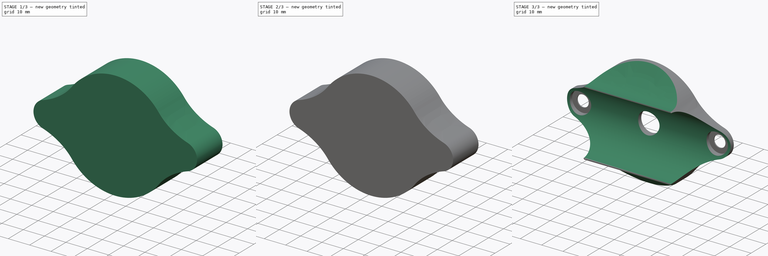
[diagram: build sequence overview — one tinted view per stage of 3, left to right]
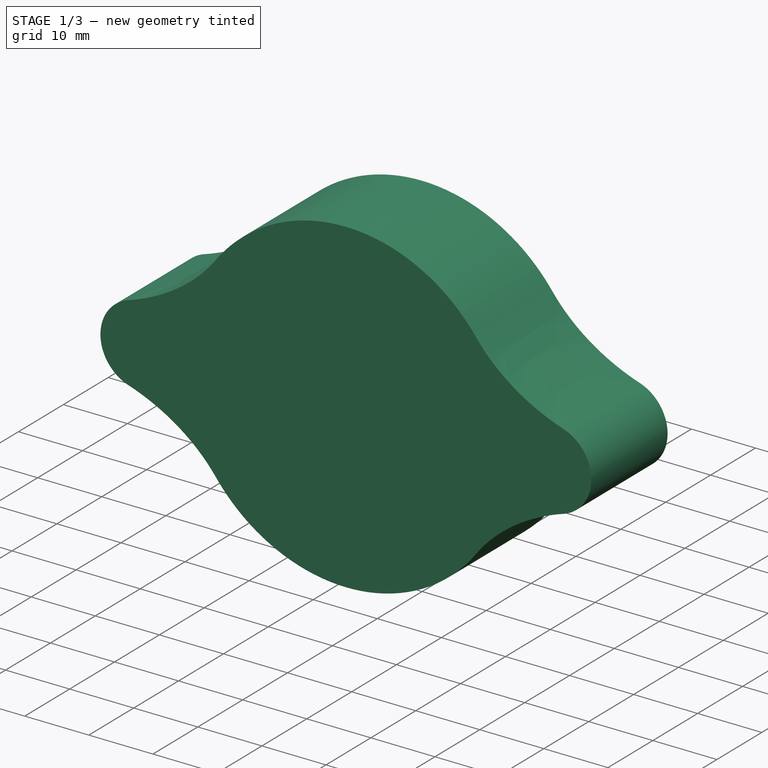
[diagram: stage 1 of 3 — iso view after this stage's code; geometry added in this stage tinted green]
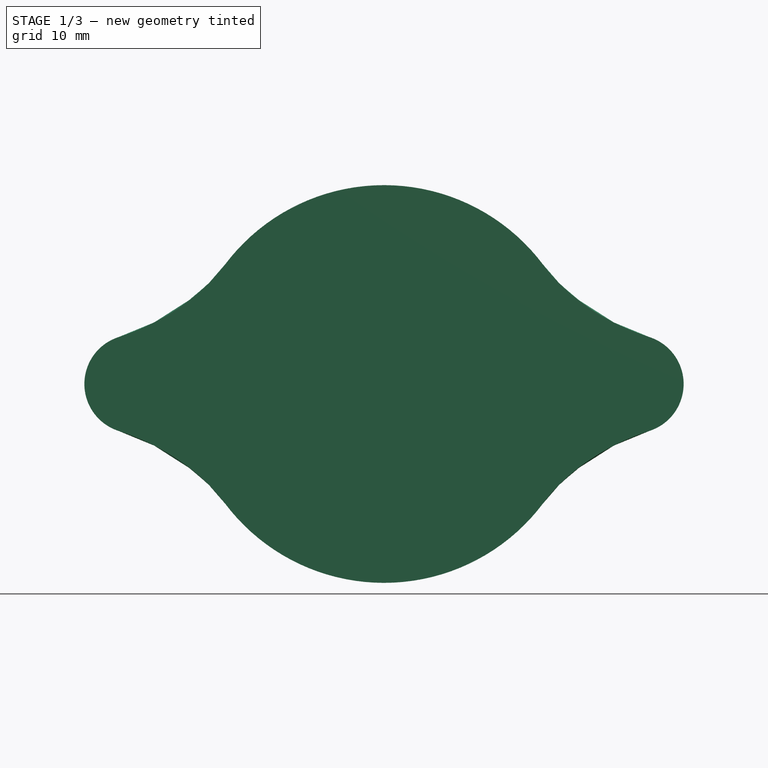
[diagram: stage 1 of 3 — front view after this stage's code; geometry added in this stage tinted green]
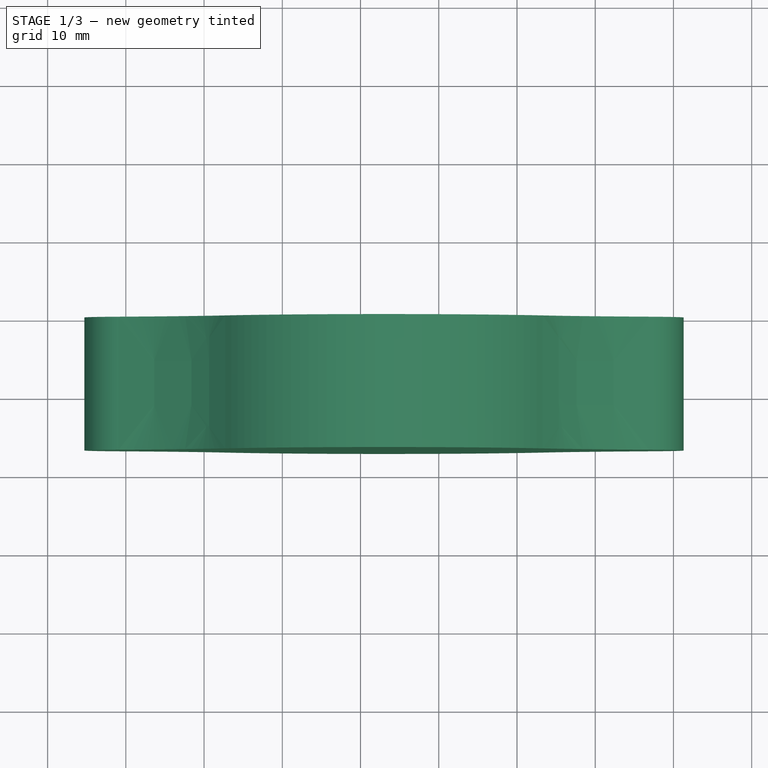
[diagram: stage 1 of 3 — top view after this stage's code; geometry added in this stage tinted green]
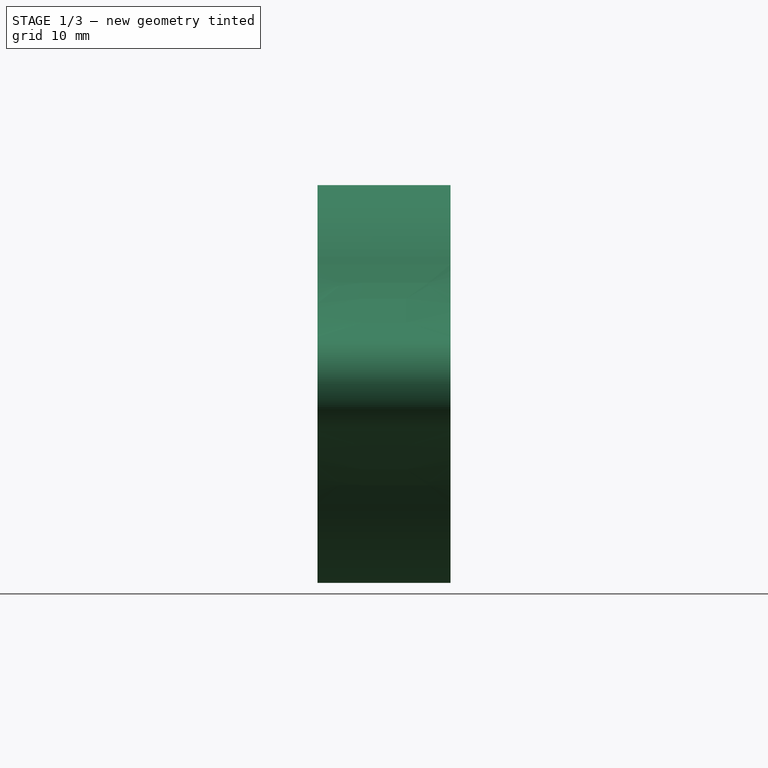
[diagram: stage 1 of 3 — right view after this stage's code; geometry added in this stage tinted green]
FCSTD DOCUMENT  (FreeCAD 1.1R)
Label: kryptonite-bottlecage-holder
License: All rights reserved
LicenseURL: https://en.wikipedia.org/wiki/All_rights_reserved
objects: Sketcher::SketchObject×4, PartDesign::Pocket×3, Part::Feature×1, App::Point×1, PartDesign::Pad×1, PartDesign::Chamfer×1, PartDesign::Body×1
note: 25 computed .brp shape members not serialized (recipe doc carries the construction recipe); baked Part::Feature solids carry a one-line shape summary decoded from their .brp

FEATURE [Part::Feature] bike_lock_adapter002_solid  label="kryptonite lock holder"
  Placement = pos=(-75.4,0,-50.32) rot=(0,0,1;0rad)
  shape: bbox 76.66 x 15.24 x 50.8 mm, 8290 faces (baked)
FEATURE [App::Point] Origin001
  Role = Origin
FEATURE [Sketcher::SketchObject] Sketch002
  ArcFitTolerance = 1e-06
  ExternalTypes = [0]
  FullyConstrained = false
  MakeInternals = false
  Placement = pos=(0,0,0) rot=(1,0,0;1.5708rad)
  _ExternalGeoVersion = 0
  sketch-geometry (45):
    g0: LineSegment [constr] StartX=0 StartY=-25 StartZ=0 EndX=-5 EndY=-25 EndZ=0
    g1: LineSegment [constr] StartX=-5 StartY=-25 StartZ=0 EndX=-37 EndY=-25 EndZ=0
    g2: LineSegment [constr] StartX=-37 StartY=-25 StartZ=0 EndX=-69 EndY=-25 EndZ=0
    g3: LineSegment [constr] StartX=-37 StartY=-25 StartZ=0 EndX=-37 EndY=0 EndZ=0
    g4: LineSegment [constr] StartX=-37 StartY=-25 StartZ=0 EndX=-37 EndY=-50 EndZ=0
    g5: ArcOfCircle CenterX=-37 CenterY=-25 CenterZ=0 NormalX=0 NormalY=0 NormalZ=1 AngleXU=0 Radius=25.4201 StartAngle=0.645861 EndAngle=1.5708
    g6: ArcOfCircle CenterX=-5 CenterY=-25 CenterZ=0 NormalX=0 NormalY=0 NormalZ=1 AngleXU=0 Radius=6.3 StartAngle=1e-16 EndAngle=1.26095
    g7-g10: Circle [constr] x4 (B-spline internal-alignment scaffolding for g11; pole/knot coordinates omitted)
    g11: BSplineCurve PolesCount=4 KnotsCount=2 Degree=3 IsPeriodic=0
    g12: GeomPoint [constr] X=-16.7 Y=-9.7 Z=0
    g13: GeomPoint [constr] X=-3.07906 Y=-19 Z=0
    g14: LineSegment [constr] StartX=-3.07906 StartY=-19 StartZ=0 EndX=1.68284 EndY=-20.5246 EndZ=0
    g15: LineSegment [constr] StartX=-3.07906 StartY=-19 StartZ=0 EndX=-7.81641 EndY=-17.4833 EndZ=0
    g16: LineSegment [constr] StartX=-16.7 StartY=-9.7 StartZ=0 EndX=-20.1663 EndY=-5.10097 EndZ=0
    g17: LineSegment [constr] StartX=-16.7 StartY=-9.7 StartZ=0 EndX=-11.0387 EndY=-17.2115 EndZ=0
    g18: ArcOfCircle CenterX=-37 CenterY=-25 CenterZ=0 NormalX=0 NormalY=0 NormalZ=1 AngleXU=0 Radius=25.4201 StartAngle=1.5708 EndAngle=2.49573
    g19: BSplineCurve PolesCount=4 KnotsCount=2 Degree=3 IsPeriodic=0
    g20: ArcOfCircle CenterX=-69 CenterY=-25 CenterZ=0 NormalX=0 NormalY=0 NormalZ=1 AngleXU=0 Radius=6.3 StartAngle=1.88064 EndAngle=3.14159
    g21-g24: Circle [constr] x4 (B-spline internal-alignment scaffolding for g19; pole/knot coordinates omitted)
    g25: GeomPoint [constr] X=-57.3 Y=-9.7 Z=0
    g26: GeomPoint [constr] X=-70.9209 Y=-19 Z=0
    g27: ArcOfCircle CenterX=-37 CenterY=-25 CenterZ=0 NormalX=0 NormalY=0 NormalZ=1 AngleXU=0 Radius=25.4201 StartAngle=4.71239 EndAngle=5.63732
    g28: BSplineCurve PolesCount=4 KnotsCount=2 Degree=3 IsPeriodic=0
    g29: ArcOfCircle CenterX=-5 CenterY=-25 CenterZ=0 NormalX=0 NormalY=0 NormalZ=1 AngleXU=0 Radius=6.3 StartAngle=5.02223 EndAngle=6.28319
    g30-g33: Circle [constr] x4 (B-spline internal-alignment scaffolding for g28; pole/knot coordinates omitted)
    g34: GeomPoint [constr] X=-16.7 Y=-40.3 Z=0
    g35: GeomPoint [constr] X=-3.07906 Y=-31 Z=0
    g36: ArcOfCircle CenterX=-37 CenterY=-25 CenterZ=0 NormalX=0 NormalY=0 NormalZ=1 AngleXU=0 Radius=25.4201 StartAngle=3.78745 EndAngle=4.71239
    g37: BSplineCurve PolesCount=4 KnotsCount=2 Degree=3 IsPeriodic=0
    g38: ArcOfCircle CenterX=-69 CenterY=-25 CenterZ=0 NormalX=0 NormalY=0 NormalZ=1 AngleXU=0 Radius=6.3 StartAngle=3.14159 EndAngle=4.40254
    g39-g42: Circle [constr] x4 (B-spline internal-alignment scaffolding for g37; pole/knot coordinates omitted)
    g43: GeomPoint [constr] X=-57.3 Y=-40.3 Z=0
    g44: GeomPoint [constr] X=-70.9209 Y=-31 Z=0
  constraints (74):
    c: PointOnObject(g0,g-2)
    c: Horizontal(g0)
    c: Coincident(g0,g1)
    c: Horizontal(g1)
    c: Coincident(g1,g2)
    c: Horizontal(g2)
    c: Vertical(g3)
    c: Coincident(g4,g3)
    c: Vertical(g4)
    c: Equal(g1,g2)
    c: DistanceX(g2,g0) = 64
    c: Distance(g0,g0) = 5
    c: DistanceY(g3,g3) = 25
    c: Coincident(g3,g1)
    c: Distance(g0,g-1) = 25
    c: Coincident(g5,g1)
    c: Distance(g5,g3) = 20.3
    c: Distance(g5,g1) = 15.3
    c: Vertical(g5,g3)
    c: Coincident(g6,g0)
    c: Horizontal(g6,g0)
    c: Distance(g6,g0) = 6
    c: Distance(g0,g6) = 6.3
    c: Weight(g7) = 1
    c: Equal(g7,g8)
    c: Equal(g7,g9)
    c: Equal(g7,g10)
    c: InternalAlignment(g7-g10 -> g11) x4
    c: InternalAlignment(g12,g11)
    c: InternalAlignment(g13,g11)
    c: Coincident(g7,g5)
    c: Coincident(g10,g6)
    c: Tangent(g6,g14)
    c: Distance(g14,g14) = 5
    c: PointOnObject(g9,g15)
    c: Parallel(g15,g14)
    c: Coincident(g14,g11)
    c: Coincident(g14,g15)
    c: Coincident(g16,g11)
    c: Coincident(g17,g5)
    c: Tangent(g16,g5)
    c: Distance(g16,g16) = 5.759
    c: PointOnObject(g8,g17)
    c: Parallel(g17,g16)
    c: Distance(g17,g17) = 9.406
    c: Distance(g8,g5) = 6.405
    c: Distance(g9,g8) = 6.238
    c: Weight(g21) = 1
    c: Equal(g21,g22)
    c: Equal(g21,g23)
    c: Equal(g21,g24)
    c: InternalAlignment(g21-g26 -> g19) x6
    c: Coincident(g21,g18)
    c: Coincident(g24,g20)
    c: Distance(g22,g18) = 6.405
    c: Distance(g23,g22) = 6.238
    c: Weight(g30) = 1
    c: Equal(g30,g31)
    c: Equal(g30,g32)
    c: Equal(g30,g33)
    c: InternalAlignment(g30-g35 -> g28) x6
    c: Coincident(g30,g27)
    c: Coincident(g33,g29)
    c: Distance(g31,g27) = 6.405
    c: Distance(g32,g31) = 6.238
    c: Weight(g39) = 1
    c: Equal(g39,g40)
    c: Equal(g39,g41)
    c: Equal(g39,g42)
    c: InternalAlignment(g39-g44 -> g37) x6
    c: Coincident(g39,g36)
    c: Coincident(g42,g38)
    c: Distance(g40,g36) = 6.405
    c: Distance(g41,g40) = 6.238
FEATURE [PartDesign::Pad] Pad
  Direction = (0,-1,-2e-16)
  Length = 17
  Length2 = 10
  Placement = pos=(0,0,0) rot=(1,0,0;1.5708rad)
  Profile = -> Sketch002
  ReferenceAxis = -> Sketch002 [N_Axis]
  Refine = true
  SideType = 0
  Suppressed = false
  Type = 0
  Type2 = 0
FEATURE [Sketcher::SketchObject] Sketch004
  ArcFitTolerance = 1e-06
  AttachmentSupport = -> [Origin]
  ExternalTypes = [0]
  FullyConstrained = true
  MakeInternals = false
  MapMode = 5
  Placement = pos=(0,0,0) rot=(1,0,0;1.5708rad)
  _ExternalGeoVersion = 0
  sketch-geometry (3):
    g0: Circle CenterX=-5 CenterY=-25 CenterZ=0 NormalX=0 NormalY=0 NormalZ=1 AngleXU=0 Radius=2.75
    g1: Circle CenterX=-69 CenterY=-25 CenterZ=0 NormalX=0 NormalY=0 NormalZ=1 AngleXU=0 Radius=2.75
    g2: Circle CenterX=-37 CenterY=-25 CenterZ=0 NormalX=0 NormalY=0 NormalZ=1 AngleXU=0 Radius=5
  constraints (9):
    c: Diameter(g1) = 5.5
    c: Equal(g1,g0)
    c: Horizontal(g0,g1)
    c: DistanceX(g1,g0) = 64
    c: Distance(g0,g-1) = 25
    c: Horizontal(g2,g0)
    c: Distance(g0,g-2) = 5
    c: DistanceX(g2,g0) = 32
    c: Diameter(g2) = 10
FEATURE [Sketcher::SketchObject] Sketch005
  ArcFitTolerance = 1e-06
  AttachmentOffset = pos=(0,0,1) rot=(0,0,1;0rad)
  AttachmentSupport = -> [Origin]
  ExternalTypes = [0]
  FullyConstrained = true
  MakeInternals = false
  MapMode = 5
  Placement = pos=(0,-1,2e-16) rot=(1,0,0;1.5708rad)
  _ExternalGeoVersion = 0
  sketch-geometry (2):
    g0: Circle CenterX=-5 CenterY=-25 CenterZ=0 NormalX=0 NormalY=0 NormalZ=1 AngleXU=0 Radius=5
    g1: Circle CenterX=-69 CenterY=-25 CenterZ=0 NormalX=0 NormalY=0 NormalZ=1 AngleXU=0 Radius=5
  constraints (6):
    c: Diameter(g1) = 10
    c: Equal(g1,g0)
    c: Horizontal(g0,g1)
    c: DistanceX(g1,g0) = 64
    c: Distance(g0,g-2) = 5
    c: Distance(g0,g-1) = 25
FEATURE [PartDesign::Pocket] Pocket003
  BaseFeature = -> Pad
  Direction = (0,1,-2e-16)
  Length = 19
  Length2 = 5
  Placement = pos=(0,0,0) rot=(1,0,0;1.5708rad)
  Profile = -> Sketch004
  ReferenceAxis = -> Sketch004 [N_Axis]
  Refine = true
  SideType = 2
  Suppressed = false
  Type = 0
  Type2 = 0
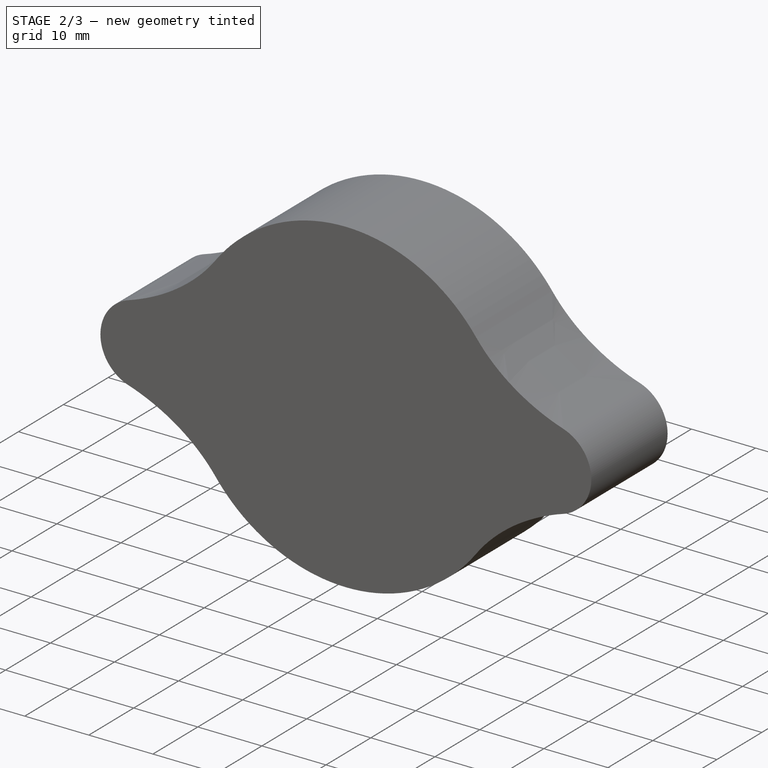
[diagram: stage 2 of 3 — iso view after this stage's code; geometry added in this stage tinted green]
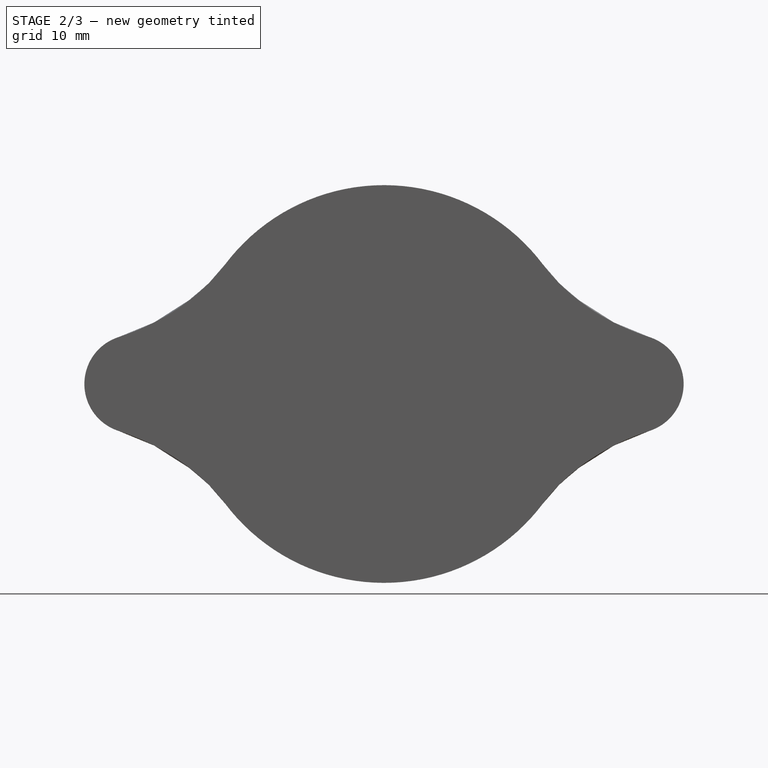
[diagram: stage 2 of 3 — front view after this stage's code; geometry added in this stage tinted green]
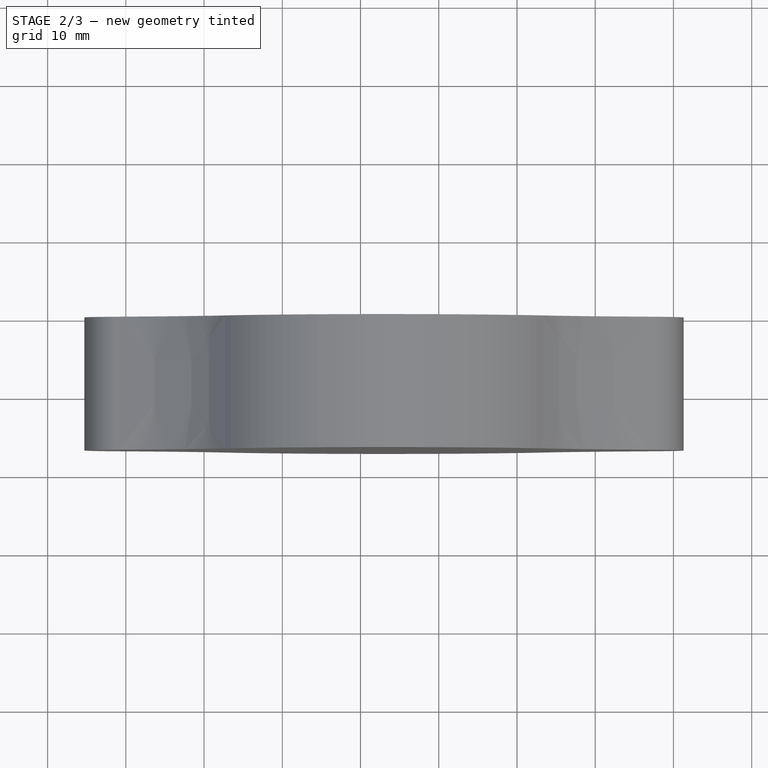
[diagram: stage 2 of 3 — top view after this stage's code; geometry added in this stage tinted green]
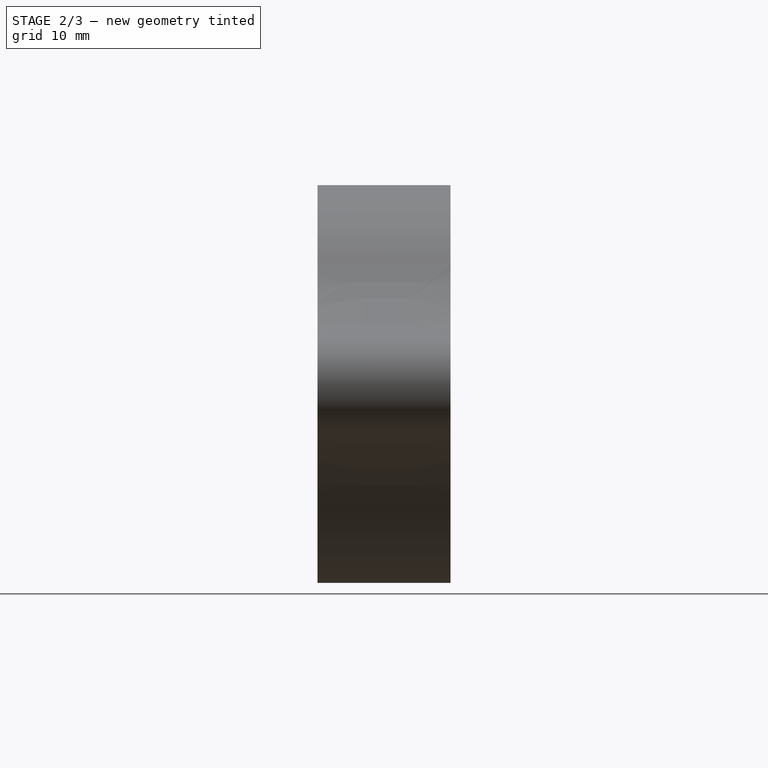
[diagram: stage 2 of 3 — right view after this stage's code; geometry added in this stage tinted green]
FEATURE [PartDesign::Pocket] Pocket004
  BaseFeature = -> Pocket003
  Direction = (0,1,-2e-16)
  Length = 3
  Length2 = 5
  Placement = pos=(0,0,0) rot=(1,0,0;1.5708rad)
  Profile = -> Sketch005
  ReferenceAxis = -> Sketch005 [N_Axis]
  Refine = true
  Reversed = true
  SideType = 0
  Suppressed = false
  Type = 0
  Type2 = 0
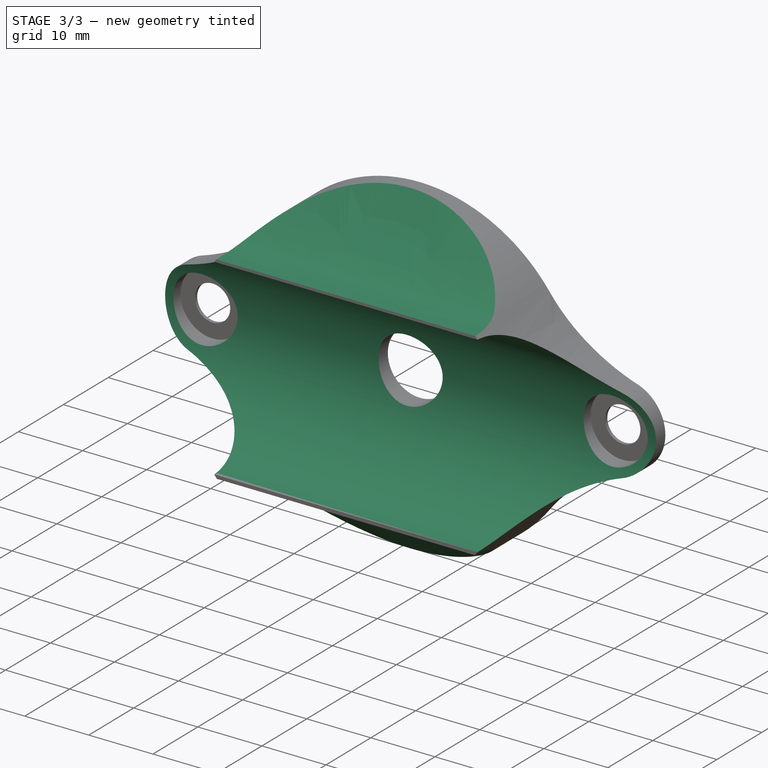
[diagram: stage 3 of 3 — iso view after this stage's code; geometry added in this stage tinted green]
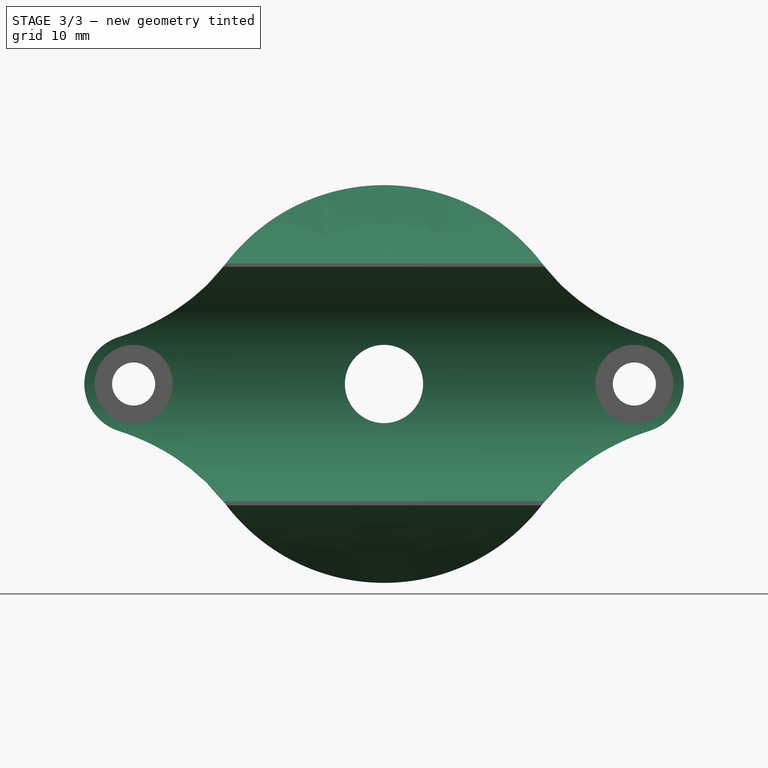
[diagram: stage 3 of 3 — front view after this stage's code; geometry added in this stage tinted green]
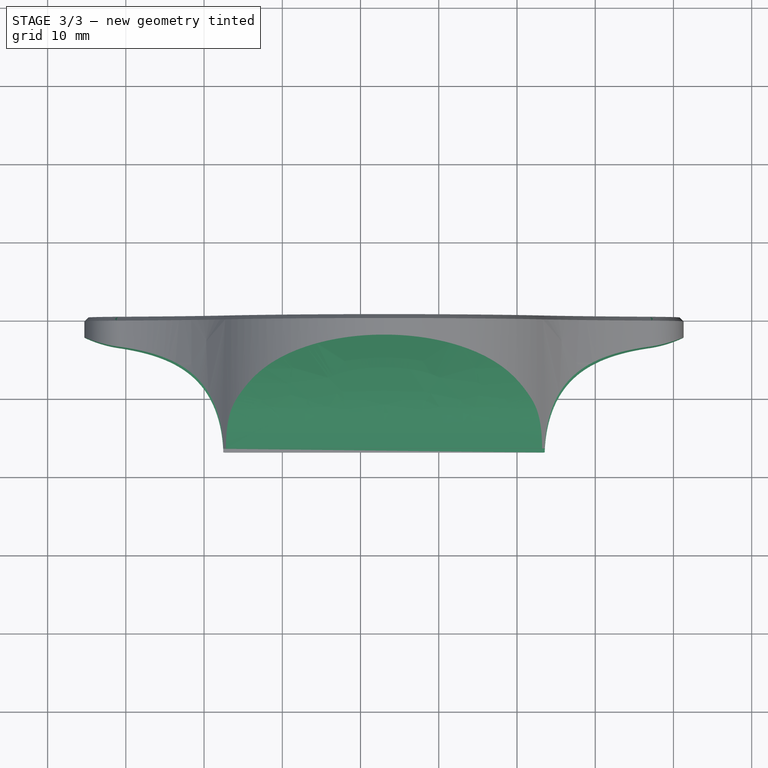
[diagram: stage 3 of 3 — top view after this stage's code; geometry added in this stage tinted green]
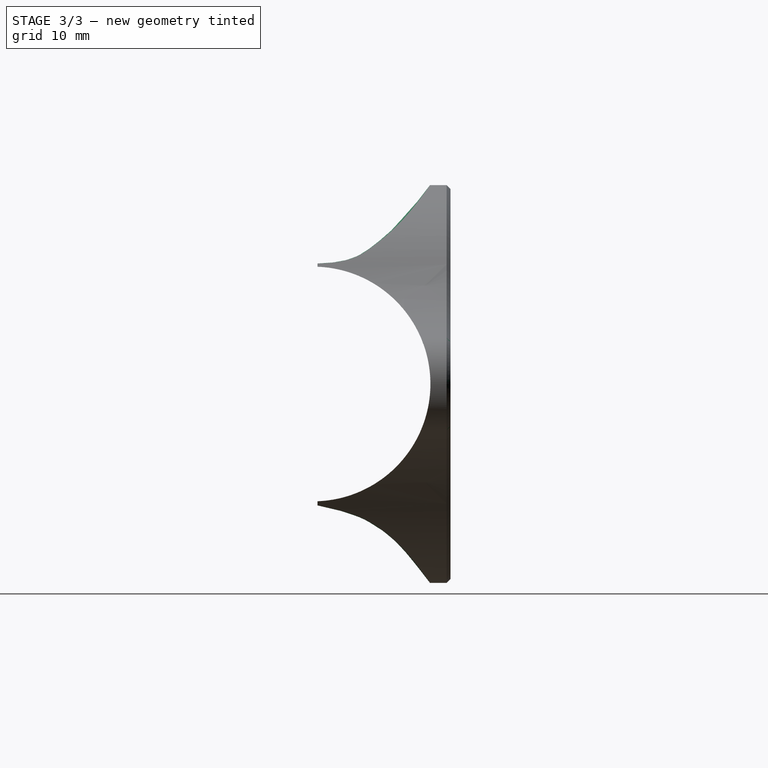
[diagram: stage 3 of 3 — right view after this stage's code; geometry added in this stage tinted green]
FEATURE [Sketcher::SketchObject] Sketch006
  ArcFitTolerance = 1e-06
  ExternalTypes = [0]
  FullyConstrained = false
  MakeInternals = false
  Placement = pos=(0,0,0) rot=(0.57735,0.57735,0.57735;2.0944rad)
  _ExternalGeoVersion = 0
  sketch-geometry (27):
    g0: Circle CenterX=-17.569 CenterY=-25 CenterZ=0 NormalX=0 NormalY=0 NormalZ=1 AngleXU=0 Radius=15
    g1-g5: Circle [constr] x5 (B-spline internal-alignment scaffolding for g6; pole/knot coordinates omitted)
    g6: BSplineCurve PolesCount=5 KnotsCount=3 Degree=3 IsPeriodic=0
    g7: GeomPoint [constr] X=-2.45594 Y=0.661624 Z=0
    g8: GeomPoint [constr] X=-9.69089 Y=-7.22075 Z=0
    g9: GeomPoint [constr] X=-17.569 Y=-9.6 Z=0
    g10: LineSegment StartX=-17.569 StartY=-9.6 StartZ=0 EndX=-33.2464 EndY=4.94235 EndZ=0
    g11: LineSegment StartX=-33.2464 StartY=4.94235 StartZ=0 EndX=-6.88031 EndY=8.15378 EndZ=0
    g12: LineSegment StartX=-6.88031 StartY=8.15378 StartZ=0 EndX=-2.45594 EndY=0.661624 EndZ=0
    g13: LineSegment [constr] StartX=-17.569 StartY=-9.6 StartZ=0 EndX=0 EndY=-9.6 EndZ=0
    g14: LineSegment [constr] StartX=-64.6126 StartY=-25 StartZ=0 EndX=27.3014 EndY=-25 EndZ=0
    g15: Circle [constr] CenterX=-5.78202 CenterY=-45.8407 CenterZ=0 NormalX=0 NormalY=0 NormalZ=1 AngleXU=0 Radius=1
    g16: Circle [constr] CenterX=-10.0412 CenterY=-42.4381 CenterZ=0 NormalX=0 NormalY=0 NormalZ=1 AngleXU=0 Radius=1
    g17: BSplineCurve PolesCount=5 KnotsCount=3 Degree=3 IsPeriodic=0
    g18: GeomPoint [constr] X=-2.45594 Y=-50.6616 Z=0
    g19: GeomPoint [constr] X=-9.69093 Y=-43.0168 Z=0
    g20: GeomPoint [constr] X=-17.569 Y=-40.4 Z=0
    g21: LineSegment StartX=-17.569 StartY=-40.4 StartZ=0 EndX=-33.2464 EndY=-54.9424 EndZ=0
    g22: LineSegment StartX=-33.2464 StartY=-54.9424 StartZ=0 EndX=-6.88031 EndY=-58.1538 EndZ=0
    g23: LineSegment StartX=-6.88031 StartY=-58.1538 StartZ=0 EndX=-2.45594 EndY=-50.6616 EndZ=0
    g24: Circle [constr] CenterX=-2.45594 CenterY=-50.6616 CenterZ=0 NormalX=0 NormalY=0 NormalZ=1 AngleXU=0 Radius=1
    g25: Circle [constr] CenterX=-12.8993 CenterY=-41.3504 CenterZ=0 NormalX=0 NormalY=0 NormalZ=1 AngleXU=0 Radius=1
    g26: Circle [constr] CenterX=-17.569 CenterY=-40.4 CenterZ=0 NormalX=0 NormalY=0 NormalZ=1 AngleXU=0 Radius=1
  constraints (38):
    c: Distance(g0,g-1) = 25
    c: Distance(g0,g-2) = 17.569
    c: Diameter(g0) = 30
    c: Weight(g1) = 1
    c: Equal(g1, g2-g5) x4
    c: InternalAlignment(g1-g5 -> g6) x5
    c: InternalAlignment(g7,g6)
    c: InternalAlignment(g8,g6)
    c: InternalAlignment(g9,g6)
    c: Coincident(g10,g6)
    c: Coincident(g10,g11)
    c: Coincident(g11,g12)
    c: Coincident(g12,g6)
    c: PointOnObject(g13,g-2)
    c: Horizontal(g13)
    c: Tangent(g6,g13) = 1.5708
    c: Horizontal(g14)
    c: PointOnObject(g0,g14)
    c: Weight(g24) = 1
    c: Equal(g24,g15)
    c: Equal(g24,g16)
    c: Equal(g24,g25)
    c: Equal(g24,g26)
    c: InternalAlignment(g24,g17)
    c: InternalAlignment(g15,g17)
    c: InternalAlignment(g16,g17)
    c: InternalAlignment(g25,g17)
    c: InternalAlignment(g26,g17)
    c: InternalAlignment(g18,g17)
    c: InternalAlignment(g19,g17)
    c: InternalAlignment(g20,g17)
    c: Coincident(g21,g17)
    c: Coincident(g21,g22)
    c: Coincident(g22,g23)
    c: Coincident(g23,g17)
    c: Vertical(g0,g6)
    c: Symmetric(g17,g6,g14)
    c: Distance(g6,g0) = 0.4
FEATURE [PartDesign::Pocket] Pocket
  BaseFeature = -> Pocket004
  Direction = (-1,0,0)
  Length = 100
  Length2 = 5
  Placement = pos=(0,0,0) rot=(1,0,0;1.5708rad)
  Profile = -> Sketch006
  ReferenceAxis = -> Sketch006 [N_Axis]
  Refine = true
  SideType = 1
  Suppressed = false
  Type = 0
  Type2 = 0
FEATURE [PartDesign::Chamfer] Chamfer
  Angle = 45
  Base = -> Pocket [Face6]
  BaseFeature = -> Pocket
  ChamferType = 0
  FlipDirection = false
  Placement = pos=(0,0,0) rot=(1,0,0;1.5708rad)
  Refine = true
  Size = 0.5
  Size2 = 1
  SupportTransform = false
  Suppressed = false
  UseAllEdges = false
FEATURE [PartDesign::Body] Body  label="kryptonite cosmetic bracket"
  AllowCompound = false
  Group = -> [Sketch002,Pad,Sketch004,Sketch005,Pocket003,Pocket004,Sketch006,Pocket,Chamfer]
  Origin = -> Origin
  Tip = -> Chamfer
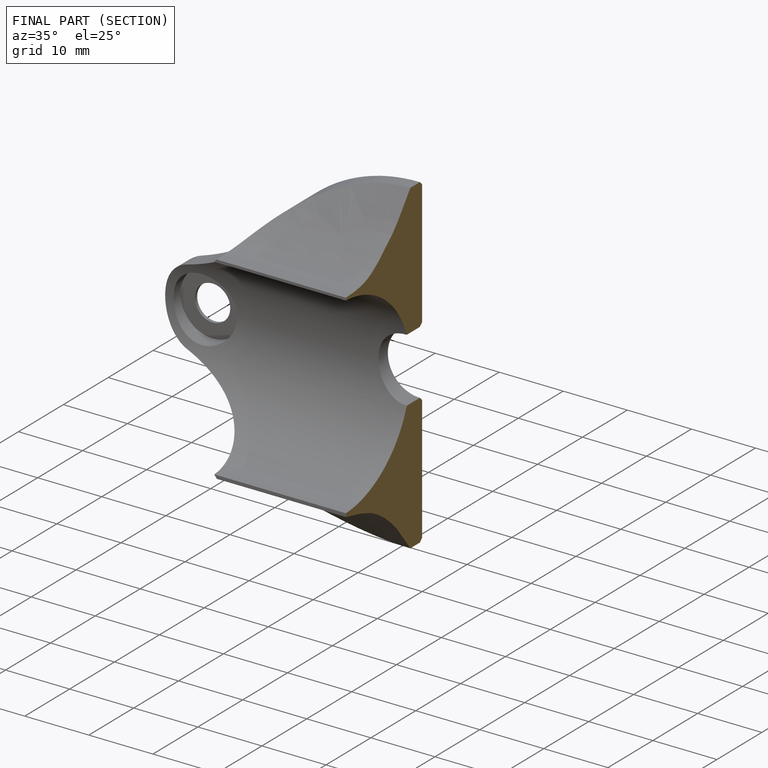
[diagram: finished part — half-section view (interior)]
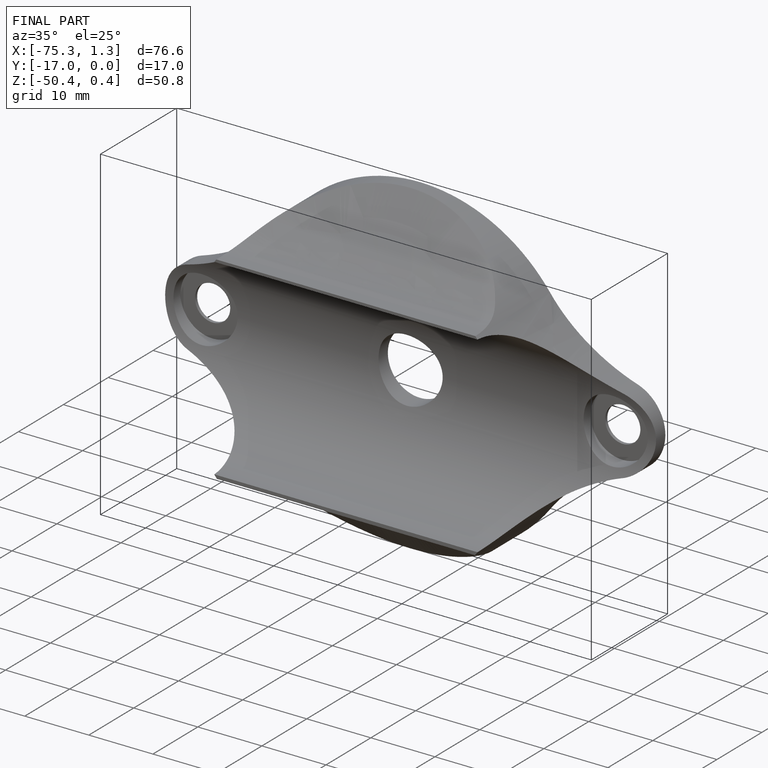
[diagram: finished part — iso view with bounding-box wireframe]
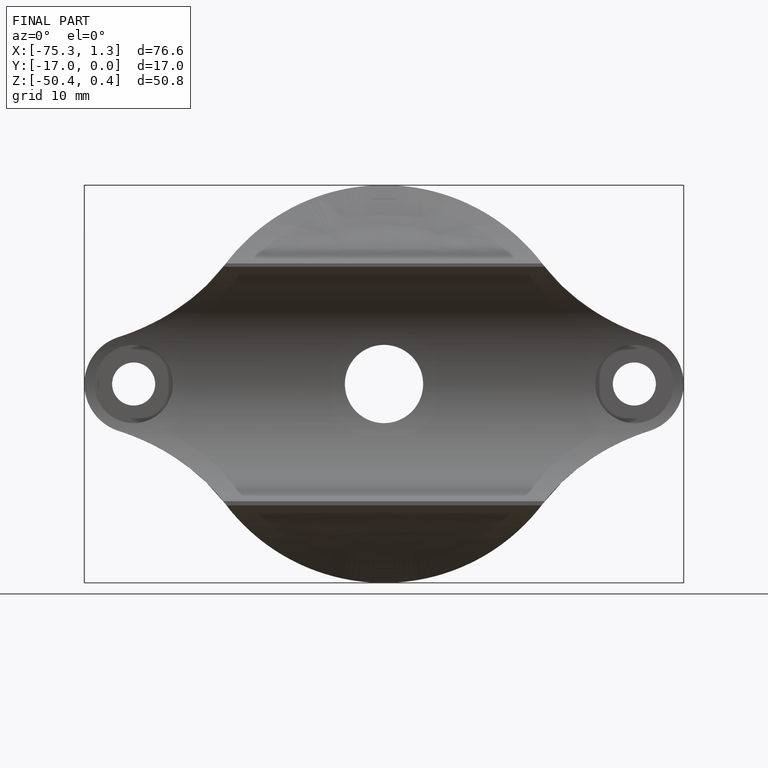
[diagram: finished part — front view with bounding-box wireframe]
